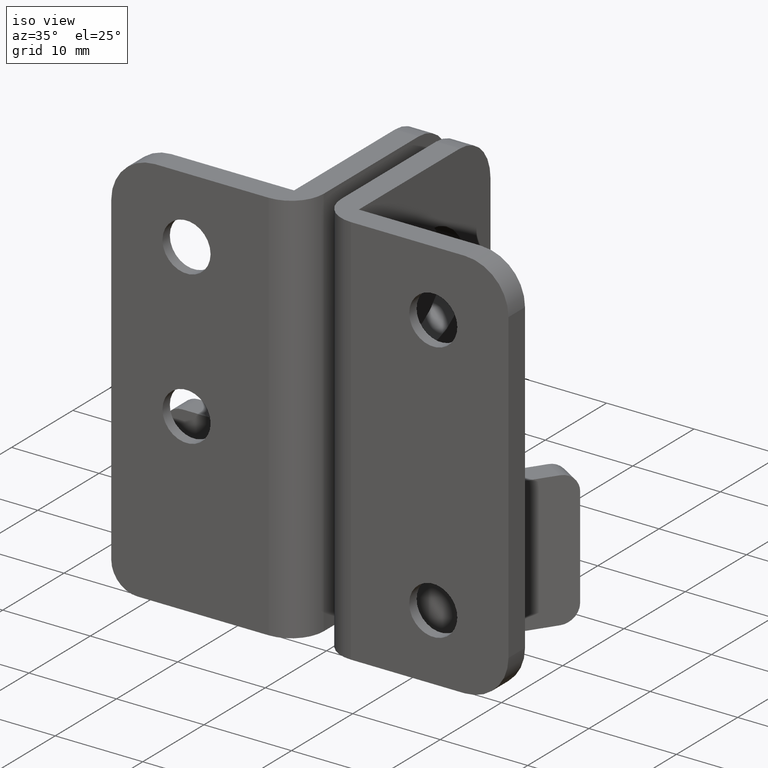
[diagram: clean part render]
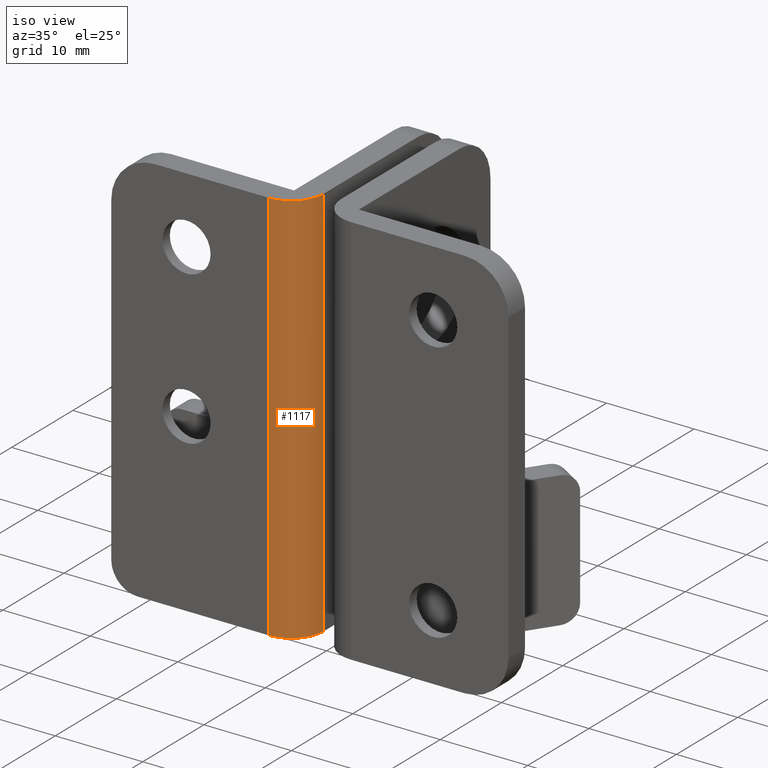
[diagram: same view with one face highlighted and labeled with its STEP entity id]
A machine part, iso view. The second image highlights one B-rep face of the part: STEP entity #1117.
In plain terms, the highlighted cylindrical surface (partial cylindrical patch) has radius 3.7 mm, axis along (0, 0, -1).
Its self-contained STEP definition (entity closure, byte-faithful):
#126=FACE_OUTER_BOUND('',#204,.T.);
#204=EDGE_LOOP('',(#820,#821,#822,#823));
#286=LINE('',#1704,#376);
#288=LINE('',#1748,#378);
#376=VECTOR('',#1342,45.2);
#378=VECTOR('',#1398,45.2);
#472=CIRCLE('',#1207,3.7);
#473=CIRCLE('',#1208,3.7);
#525=VERTEX_POINT('',#1701);
#526=VERTEX_POINT('',#1703);
#540=VERTEX_POINT('',#1744);
#541=VERTEX_POINT('',#1746);
#638=EDGE_CURVE('',#526,#525,#286,.T.);
#653=EDGE_CURVE('',#540,#526,#472,.T.);
#654=EDGE_CURVE('',#525,#541,#473,.T.);
#655=EDGE_CURVE('',#541,#540,#288,.T.);
#820=ORIENTED_EDGE('',*,*,#653,.T.);
#821=ORIENTED_EDGE('',*,*,#638,.T.);
#822=ORIENTED_EDGE('',*,*,#654,.T.);
#823=ORIENTED_EDGE('',*,*,#655,.T.);
#1079=CYLINDRICAL_SURFACE('',#1206,3.7);
#1117=ADVANCED_FACE('',(#126),#1079,.T.);
#1206=AXIS2_PLACEMENT_3D('',#1743,#1392,#1393);
#1207=AXIS2_PLACEMENT_3D('',#1745,#1394,#1395);
#1208=AXIS2_PLACEMENT_3D('',#1747,#1396,#1397);
#1342=DIRECTION('',(0.,0.,1.));
#1392=DIRECTION('center_axis',(0.,0.,-1.));
#1393=DIRECTION('ref_axis',(0.707106781186548,-0.707106781186547,0.));
#1394=DIRECTION('center_axis',(0.,0.,1.));
#1395=DIRECTION('ref_axis',(0.707106781186548,-0.707106781186547,0.));
#1396=DIRECTION('center_axis',(0.,0.,-1.));
#1397=DIRECTION('ref_axis',(0.707106781186548,-0.707106781186547,0.));
#1398=DIRECTION('',(0.,0.,-1.));
#1701=CARTESIAN_POINT('',(21.7,3.7,0.));
#1703=CARTESIAN_POINT('',(21.7,3.7,-45.2));
#1704=CARTESIAN_POINT('',(21.7,3.7,0.));
#1743=CARTESIAN_POINT('Origin',(18.,3.7,0.));
#1744=CARTESIAN_POINT('',(18.,0.,-45.2));
#1745=CARTESIAN_POINT('Origin',(18.,3.7,-45.2));
#1746=CARTESIAN_POINT('',(18.,0.,0.));
#1747=CARTESIAN_POINT('Origin',(18.,3.7,0.));
#1748=CARTESIAN_POINT('',(18.,0.,0.));